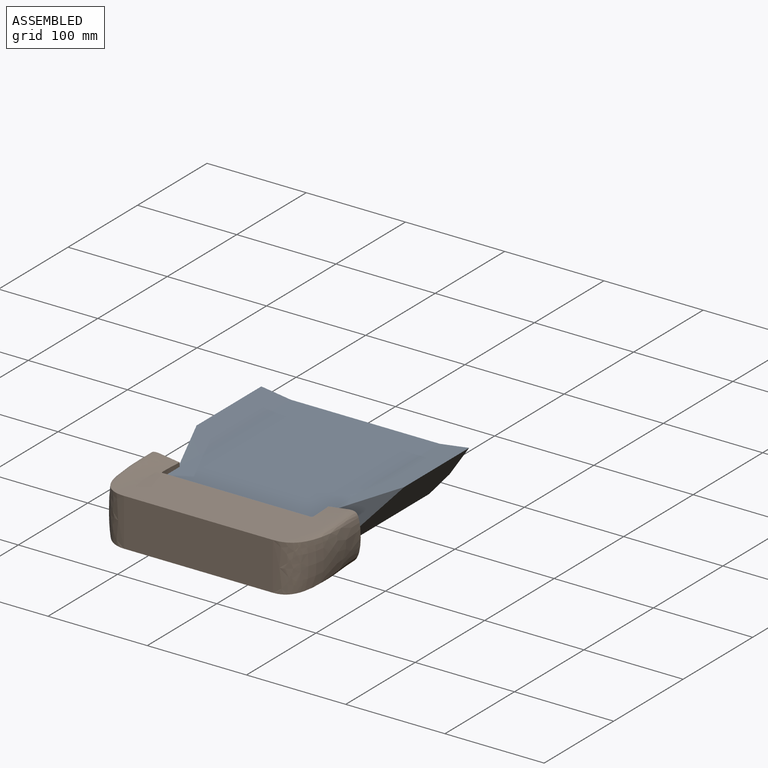
[diagram: assembled view]
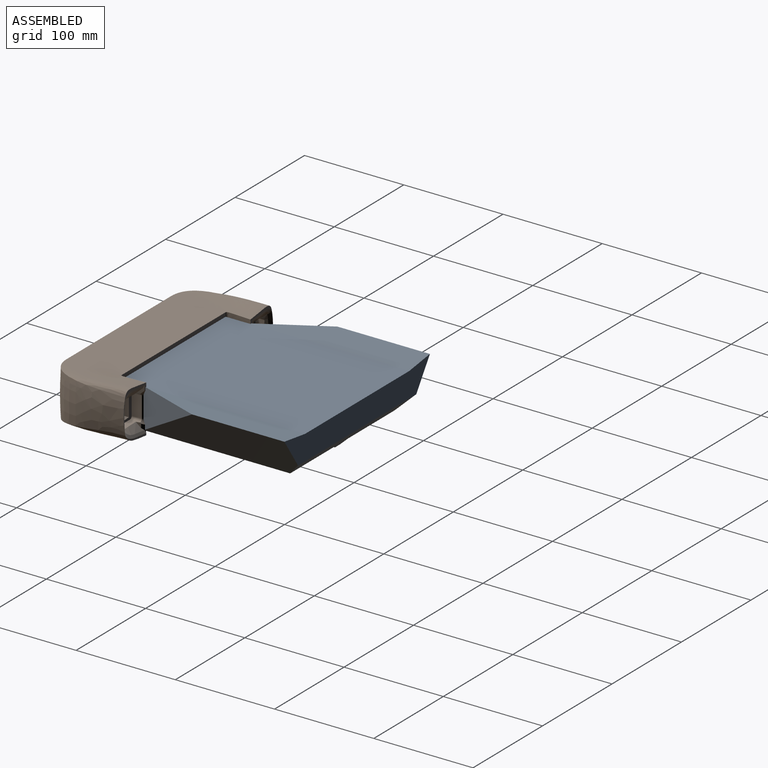
[diagram: assembled view, second angle]
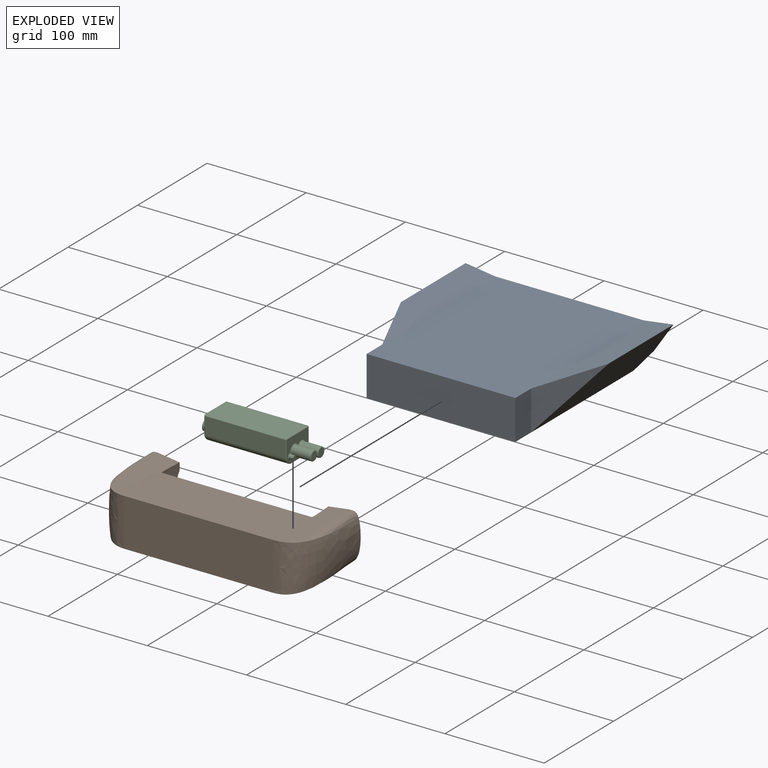
[diagram: exploded view]
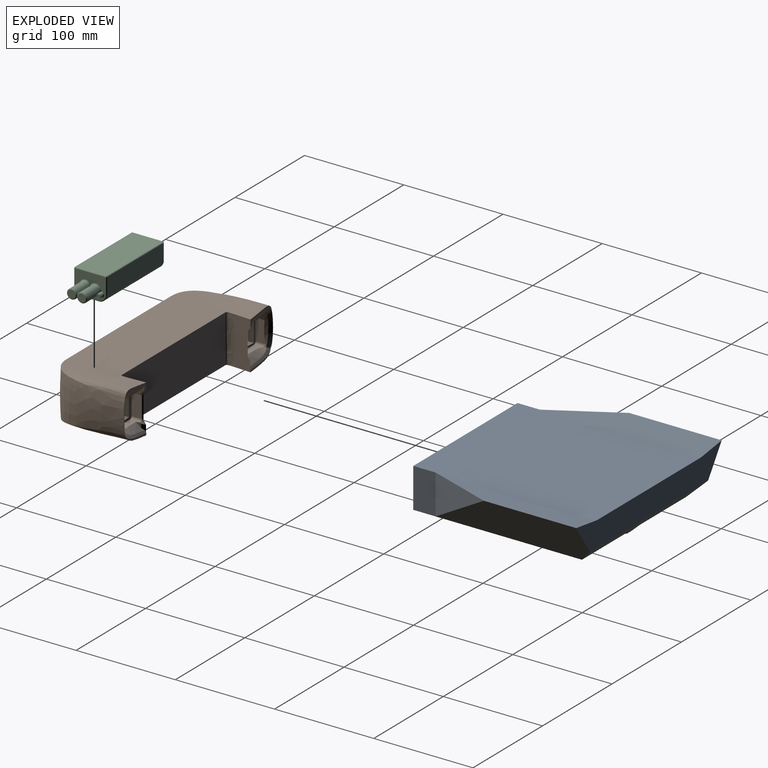
[diagram: exploded view, second angle]
ASSEMBLY  parts=3 mates=2
PART A: 17 faces, bbox 209.4x49.2x185 mm
  f0: plane 150x40mm, normal (0,0,-1), area 6000mm2, adj f1,f3,f4,f5
  f1: plane 40x22.5mm, normal (1,0,0), area 900mm2, adj f0,f4,f5,f12
  f2: plane 209.42x29.18mm, normal (0,0,1), area 4787mm2, adj f4,f6,f7,f8,f10,f11
  f3: plane 40x22.5mm, normal (-1,0,0), area 900mm2, adj f0,f4,f5,f9
  f4: plane 185x150mm, normal (0,-1,0), area 27750mm2, adj f0,f1,f2,f3,f6,f10
  f5: plane 170x150mm, normal (0,1,0), area 22874.5mm2, adj f0,f1,f3,f7,f8,f11,f14,f15
  f6: plane 162.5x29.71mm, normal (0.14,-0.99,0), area 3835.2mm2, adj f2,f4,f7,f9
  f7: plane 162.5x44.18mm, normal (-0.83,0.56,0), area 6670.1mm2, adj f2,f5,f6,f8,f9
  f8: plane 170.18x20mm, normal (0,0.71,0.71), area 3480.4mm2, adj f2,f5,f7,f11,f13,f14,f16
  f9: plane 69.32x44.18mm, normal (-0.92,0,-0.39), area 1508.3mm2, adj f3,f6,f7
  f10: plane 162.5x29.71mm, normal (-0.14,-0.99,0), area 3835.2mm2, adj f2,f4,f11,f12
  f11: plane 162.5x44.18mm, normal (0.83,0.56,0), area 6670.1mm2, adj f2,f5,f8,f10,f12
  f12: plane 69.32x44.18mm, normal (0.92,0,-0.39), area 1508.3mm2, adj f1,f10,f11
  f13: plane 145x6.94mm, normal (0,1,0), area 1006.1mm2, adj f8,f14,f15,f16
  f14: plane 155x5mm, normal (-0.71,0.71,0), area 1060.7mm2, adj f5,f8,f13,f15
  f15: plane 16.94x5mm, normal (0,0.71,-0.71), area 84.4mm2, adj f5,f13,f14,f16
  f16: plane 155x5mm, normal (0.71,0.71,0), area 1060.7mm2, adj f5,f8,f13,f15
PART B: 100 faces, bbox 231.2x85x56.7 mm
  f0: offset ~85x40.35mm, area 0mm2, adj f19,f25,f99
  f1: plane 150x55mm, normal (0,0,-1), area 800mm2, adj f7,f8,f12,f15,f16,f57,f59,f61
  f2: plane 37.1x33.53mm, normal (0,1,0), area 95.3mm2, adj f9,f10,f11,f29,f43,f44,f49
  f3: plane 28.89x9.04mm, normal (0,1,0), area 50.3mm2, adj f9,f12,f45
  f4: offset ~34.53x18.03mm, area 177.7mm2, adj f5,f27,f36,f40,f44,f45,f46
  f5: plane 4.95x4.65mm, normal (-0.97,0.24,0), area 11.3mm2, adj f4,f36,f41,f46,f47
  f6: plane 150x55mm, normal (0,0,1), area 8250mm2, adj f7,f8,f10,f55
  f7: plane 150x48.1mm, normal (0,-1,0), area 7215.2mm2, adj f1,f6,f11,f56
  f8: plane 150x48.1mm, normal (0,1,0), area 7215.2mm2, adj f1,f6,f9,f54
  f9: bspline ~48.1x25mm, area 1145.7mm2, adj f2,f3,f8,f10,f12,f45,f46,f47
  f10: bspline ~80x35.86mm, area 2245.5mm2, adj f2,f6,f9,f11
  f11: bspline ~80x49.06mm, area 4040.7mm2, adj f2,f7,f10,f12,f44
  f12: bspline ~80x35.35mm, area 2271.7mm2, adj f1,f3,f9,f11,f13,f44,f45
  f13: plane 50x2.5mm, normal (1,0,0), area 125mm2, adj f12,f15,f16,f20
  f14: plane 76.5x50mm, normal (0,0,-1), area 3825mm2, adj f15,f16,f18,f97
  f15: plane 76.5x45.6mm, normal (0,1,0), area 3488.5mm2, adj f1,f13,f14,f19,f97
  f16: plane 76.5x45.6mm, normal (0,-1,0), area 3488.5mm2, adj f1,f13,f14,f17,f97
  f17: offset ~53.1x30mm, area 611mm2, adj f16,f18,f20,f21,f22,f23,f24,f26
  f18: offset ~85x40.86mm, area 1864.4mm2, adj f14,f17,f19,f23
  f19: offset ~85x53.42mm, area 3217.3mm2, adj f0,f15,f18,f20,f21,f22,f23,f25
  f20: offset ~85x40.35mm, area 1868.3mm2, adj f13,f17,f19,f24,f26
  f21: plane 27.09x10.54mm, normal (0,0,1), area 261.7mm2, adj f17,f19,f22,f23,f99
  f22: plane 28.67x27.12mm, normal (0,-1,0), area 316.2mm2, adj f17,f19,f21,f26,f30,f31,f32,f33
  f23: bspline ~30.7x12.15mm, area 293.4mm2, adj f17,f18,f19,f21,f25
  f24: bspline ~29.53x13.03mm, area 231.4mm2, adj f17,f20,f26
  f25: bspline ~31.17x5.17mm, area 141.2mm2, adj f0,f19,f23,f99
  f26: plane 25.35x10.54mm, normal (0,0,-1), area 242.2mm2, adj f17,f19,f20,f22,f24
  f27: offset ~39.84x16.2mm, area 89.3mm2, adj f4,f28,f34,f39,f40,f44
  f28: offset ~35.7x19.61mm, area 230.7mm2, adj f27,f29,f35,f39,f43,f44
  f29: plane 9.32x8.17mm, normal (-0.97,0.24,0), area 21.6mm2, adj f2,f28,f35,f42,f43,f49
  f30: bspline ~19.81x10mm, area 119mm2, adj f22,f31,f33,f38
  f31: bspline ~22.21x10mm, area 133.3mm2, adj f22,f30,f32,f38
  f32: bspline ~19.75x10mm, area 118.7mm2, adj f22,f31,f33,f38
  f33: plane 20.85x6mm, normal (-1,0,0), area 125.1mm2, adj f22,f30,f32,f38
  f34: plane 21.01x10.6mm, normal (1,0,0), area 190mm2, adj f27,f38,f39,f40
  f35: plane 21x10.1mm, normal (0,0,-1), area 135.8mm2, adj f28,f29,f38,f39,f42
  f36: plane 21x10.1mm, normal (0,0,1), area 146.2mm2, adj f4,f5,f38,f40,f41
  f37: plane 21x10.25mm, normal (-1,0,0), area 215.3mm2, adj f38,f41,f42,f48
  f38: plane 26x26mm, normal (0,1,0), area 254.6mm2, adj f30,f31,f32,f33,f34,f35,f36,f37
  f39: cylinder r=2.5mm len=9.21mm, axis (0,-1,0), area 28.9mm2, adj f27,f28,f34,f35,f38
  f40: cylinder r=2.5mm len=10.6mm, axis (0,1,0), area 35.5mm2, adj f4,f27,f34,f36,f38
  f41: cylinder r=2.5mm len=10.25mm, axis (0,-1,0), area 40.3mm2, adj f5,f36,f37,f38,f47
  f42: cylinder r=2.5mm len=10.25mm, axis (0,1,0), area 40.3mm2, adj f29,f35,f37,f38,f49
  f43: bspline ~28.15x6.74mm, area 78.9mm2, adj f2,f28,f29,f44
  f44: bspline ~36.28x6.19mm, area 128.9mm2, adj f2,f4,f11,f12,f27,f28,f43,f45
  f45: bspline ~30.06x10.29mm, area 93.1mm2, adj f3,f4,f9,f12,f44,f46
  f46: plane 8.63x3.76mm, normal (-0.62,0.79,0), area 20.3mm2, adj f4,f5,f9,f45,f47
  f47: cone r=6.25mm half-angle=45deg, axis (0,1,0), area 14.2mm2, adj f5,f9,f41,f46,f48
  f48: plane 21x0.98mm, normal (-0.71,0.71,0), area 29.2mm2, adj f9,f37,f47,f49
  f49: cone r=6.25mm half-angle=45deg, axis (0,1,0), area 20.2mm2, adj f2,f9,f29,f42,f48
  f50: plane 37.14x33.53mm, normal (0,1,0), area 95.3mm2, adj f54,f55,f56,f76,f90,f91,f96
  f51: plane 28.95x9.09mm, normal (0,1,0), area 50.3mm2, adj f54,f57,f92
  f52: offset ~34.53x18.03mm, area 177.8mm2, adj f53,f74,f83,f87,f91,f92,f93
  f53: plane 4.95x4.65mm, normal (0.97,0.24,0), area 11.3mm2, adj f52,f83,f88,f93,f94
  f54: bspline ~48.1x25mm, area 1145.7mm2, adj f8,f50,f51,f55,f57,f92,f93,f94
  f55: bspline ~80x35.86mm, area 2245.5mm2, adj f6,f50,f54,f56
  f56: bspline ~80x49.06mm, area 4040.7mm2, adj f7,f50,f55,f57,f91
  f57: bspline ~80x35.35mm, area 2271.7mm2, adj f1,f51,f54,f56,f58,f91,f92
  f58: plane 50x2.5mm, normal (-1,0,0), area 125mm2, adj f57,f61,f62,f66
  f59: plane 50x45.6mm, normal (1,0,0), area 2280.1mm2, adj f1,f60,f61,f62
  f60: plane 72.5x50mm, normal (0,0,-1), area 3625mm2, adj f59,f61,f62,f64
  f61: plane 72.5x45.6mm, normal (0,1,0), area 3306.1mm2, adj f1,f58,f59,f60,f65
  f62: plane 72.5x45.6mm, normal (0,-1,0), area 3306.1mm2, adj f1,f58,f59,f60,f63
  f63: offset ~53.1x30mm, area 611mm2, adj f62,f64,f66,f67,f68,f69,f70,f73
  f64: offset ~85x40.86mm, area 1864.4mm2, adj f60,f63,f65,f69
  f65: offset ~85x53.42mm, area 3404.9mm2, adj f61,f64,f66,f69,f71
  f66: offset ~85x40.35mm, area 1859.3mm2, adj f58,f63,f65,f70,f71,f72,f73
  f67: plane 24.99x10.54mm, normal (0,0,1), area 241.2mm2, adj f63,f68,f69,f72
  f68: plane 28.67x24.52mm, normal (0,-1,0), area 254.1mm2, adj f63,f67,f72,f73,f77,f78,f79,f80
  f69: bspline ~30.7x12.15mm, area 293.4mm2, adj f63,f64,f65,f67,f71
  f70: bspline ~29.53x13.03mm, area 231.4mm2, adj f63,f66,f73
  f71: bspline ~31.17x5.17mm, area 141.2mm2, adj f65,f66,f69,f72
  f72: plane 28.06x10.02mm, normal (1,0,0), area 279.8mm2, adj f66,f67,f68,f71,f73
  f73: plane 24.99x10.54mm, normal (0,0,-1), area 240.9mm2, adj f63,f66,f68,f70,f72
  f74: offset ~39.84x16.2mm, area 89.3mm2, adj f52,f75,f81,f86,f87,f91
  f75: offset ~35.7x19.61mm, area 230.8mm2, adj f74,f76,f82,f86,f90,f91
  f76: plane 9.32x8.17mm, normal (0.97,0.24,0), area 21.6mm2, adj f50,f75,f82,f89,f90,f96
  f77: bspline ~19.81x10mm, area 119mm2, adj f68,f78,f80,f85
  f78: bspline ~22.21x10mm, area 133.3mm2, adj f68,f77,f79,f85
  f79: bspline ~19.75x10mm, area 118.7mm2, adj f68,f78,f80,f85
  f80: plane 20.85x6mm, normal (1,0,0), area 125.1mm2, adj f68,f77,f79,f85
  f81: plane 21.01x10.6mm, normal (-1,0,0), area 190mm2, adj f74,f85,f86,f87
  f82: plane 21x10.1mm, normal (0,0,-1), area 135.8mm2, adj f75,f76,f85,f86,f89
  f83: plane 21x10.1mm, normal (0,0,1), area 146.2mm2, adj f52,f53,f85,f87,f88
  f84: plane 21x10.25mm, normal (1,0,0), area 215.3mm2, adj f85,f88,f89,f95
  f85: plane 26x26mm, normal (0,1,0), area 254.6mm2, adj f77,f78,f79,f80,f81,f82,f83,f84
  f86: cylinder r=2.5mm len=9.21mm, axis (0,-1,0), area 28.9mm2, adj f74,f75,f81,f82,f85
  f87: cylinder r=2.5mm len=10.6mm, axis (0,1,0), area 35.5mm2, adj f52,f74,f81,f83,f85
  f88: cylinder r=2.5mm len=10.25mm, axis (0,-1,0), area 40.3mm2, adj f53,f83,f84,f85,f94
  f89: cylinder r=2.5mm len=10.25mm, axis (0,1,0), area 40.3mm2, adj f76,f82,f84,f85,f96
  f90: bspline ~28.15x6.74mm, area 78.9mm2, adj f50,f75,f76,f91
  f91: bspline ~33.68x5.62mm, area 128.9mm2, adj f50,f52,f56,f57,f74,f75,f90,f92
  f92: bspline ~32.82x11.41mm, area 93mm2, adj f51,f52,f54,f57,f91,f93
  f93: plane 8.63x3.76mm, normal (0.62,0.79,0), area 20.3mm2, adj f52,f53,f54,f92,f94
  f94: cone r=6.25mm half-angle=45deg, axis (0,1,0), area 14.2mm2, adj f53,f54,f88,f93,f95
  f95: plane 21x0.98mm, normal (0.71,0.71,0), area 29.2mm2, adj f54,f84,f94,f96
  f96: cone r=6.25mm half-angle=45deg, axis (0,1,0), area 20.2mm2, adj f50,f54,f76,f89,f95
  f97: plane 50x45.6mm, normal (-1,0,0), area 2280.1mm2, adj f1,f14,f15,f16
  f98: plane 11.35x10mm, normal (-1,0,0), area 93.7mm2, adj f19,f22,f99
  f99: plane 27.89x2.83mm, normal (0,1,0), area 57.4mm2, adj f0,f19,f21,f25,f98
PART C: 42 faces, bbox 33x25x113 mm
  f0: cylinder r=5mm len=18mm, axis (0,0,1), area 554.7mm2, adj f17,f18,f36,f39
  f1: plane 31x23mm, normal (0,0,-1), area 426.1mm2, adj f19,f20,f21,f24,f26,f27,f34,f36
  f2: plane 81x17mm, normal (1,0,0), area 1377mm2, adj f11,f20,f22,f25
  f3: plane 31x24mm, normal (0,0,1), area 644.4mm2, adj f5,f13,f25,f28,f30,f32,f33
  f4: plane 81x17mm, normal (-1,0,0), area 1377mm2, adj f12,f27,f31,f33
  f5: plane 82x31mm, normal (0,-1,0), area 2542mm2, adj f3,f22,f26,f31
  f6: plane 81x19mm, normal (0,1,0), area 1539mm2, adj f11,f12,f21,f30
  f7: cylinder r=2.45mm len=18mm, axis (0,0,1), area 19.5mm2, adj f8,f35,f41
  f8: cylinder r=5mm len=18mm, axis (0,0,1), area 546.1mm2, adj f7,f37,f40
  f9: plane 8x8mm, normal (0,0,-1), area 50.2mm2, adj f40,f41
  f10: plane 8x8mm, normal (0,0,-1), area 50.3mm2, adj f39
  f11: bspline ~91.3x7mm, area 855.6mm2, adj f2,f6,f19,f28
  f12: bspline ~91.3x7mm, area 855.6mm2, adj f4,f6,f24,f32
  f13: cylinder r=4.99mm len=10mm, axis (0,0,-1), area 313.3mm2, adj f3,f14
  f14: plane 9.97x9.97mm, normal (0,0,1), area 78.1mm2, adj f13
  f15: cylinder r=2.18mm len=4.36mm, axis (0,0,1), area 54.8mm2, adj f16,f38
  f16: plane 4.36x4.36mm, normal (0,0,-1), area 14.9mm2, adj f15
  f17: cylinder r=2.18mm len=4.36mm, axis (0,0,1), area 43.4mm2, adj f0,f18,f34
  f18: plane 4.36x4.3mm, normal (0,0,-1), area 13.8mm2, adj f0,f17
  f19: bspline ~8.05x7.35mm, area 15.7mm2, adj f1,f11,f20,f21
  f20: cylinder r=1mm len=17mm, axis (0,1,0), area 26.7mm2, adj f1,f2,f19,f23
  f21: cylinder r=1mm len=19mm, axis (1,0,0), area 29.8mm2, adj f1,f6,f19,f24
  f22: cylinder r=1mm len=82mm, axis (0,0,-1), area 128mm2, adj f2,f5,f23,f25
  f23: sphere r=1mm, area 1.6mm2, adj f20,f22,f26
  f24: bspline ~8.05x7.35mm, area 15.7mm2, adj f1,f12,f21,f27
  f25: cylinder r=1mm len=18mm, axis (0,-1,0), area 27.5mm2, adj f2,f3,f22,f28
  f26: cylinder r=1mm len=31mm, axis (-1,0,0), area 48.7mm2, adj f1,f5,f23,f29
  f27: cylinder r=1mm len=17mm, axis (0,-1,0), area 26.7mm2, adj f1,f4,f24,f29
  f28: bspline ~8.05x7.35mm, area 15.7mm2, adj f3,f11,f25,f30
  f29: sphere r=1mm, area 1.6mm2, adj f26,f27,f31
  f30: cylinder r=1mm len=19mm, axis (-1,0,0), area 29.8mm2, adj f3,f6,f28,f32
  f31: cylinder r=1mm len=82mm, axis (0,0,1), area 128mm2, adj f4,f5,f29,f33
  f32: bspline ~8.05x7.35mm, area 15.7mm2, adj f3,f12,f30,f33
  f33: cylinder r=1mm len=18mm, axis (0,1,0), area 27.5mm2, adj f3,f4,f31,f32
  f34: torus R=3.18mm, axis (0,0,-1), area 17.8mm2, adj f1,f17,f36
  f35: torus R=1.45mm, axis (0,0,-1), area 0.6mm2, adj f7,f37,f38
  f36: torus R=6mm, axis (0,0,-1), area 42.3mm2, adj f0,f1,f34,f37
  f37: torus R=6mm, axis (0,0,-1), area 45.2mm2, adj f1,f8,f35,f36,f38
  f38: torus R=3.18mm, axis (0,0,-1), area 21.8mm2, adj f1,f15,f35,f37
  f39: torus R=4mm, axis (0,0,-1), area 45.8mm2, adj f0,f10
  f40: torus R=4mm, axis (0,0,-1), area 43.9mm2, adj f8,f9,f41
  f41: torus R=3.45mm, axis (0,0,-1), area 1.7mm2, adj f7,f9,f40
PLACE A rot(axis=(-1,0,0),90deg) t=(-42.05,81.24,-1.97)mm
PLACE B t=(-42.05,-11.26,-6.02)mm
PLACE C rot(axis=(-0.58,-0.58,0.58),120deg) t=(-2.8,-38.76,14.58)mm
MATE fastened A.f0 <-> B.f8  axis (0,-1,0) through (-42.05,-11.26,18.03)mm
MATE fastened C.f5 <-> B.f60  axis (0,0,1) through (-3.3,-38.76,39.58)mm
